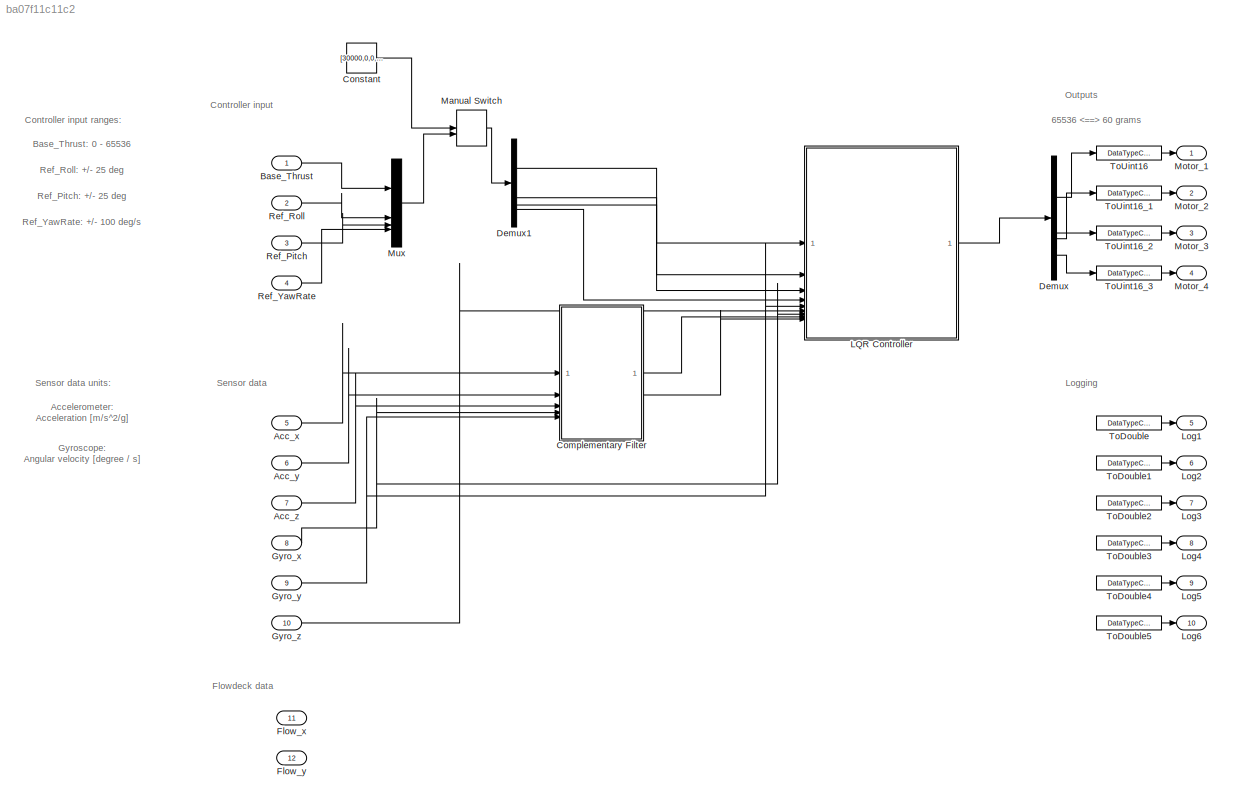
MODEL slx_ba07f11c11c2
KIND model
CONFIG AbsTol = auto
CONFIG EnableMultiTasking = off
CONFIG FixedStep = 0.01
CONFIG MaxStep = auto
CONFIG MinStep = auto
CONFIG RelTol = 1e-3
CONFIG SampleTimeConstraint = Unconstrained
CONFIG SolverName = FixedStepDiscrete
CONFIG StartTime = 0.0
CONFIG StopTime = 25
BLOCK [Inport] Acc_x
  OutDataTypeStr = double
  Port = 5
  PortDimensions = 1
  SignalType = real
  VarSizeSig = No
BLOCK [Inport] Acc_y
  OutDataTypeStr = double
  Port = 6
  PortDimensions = 1
  SignalType = real
  VarSizeSig = No
BLOCK [Inport] Acc_z
  OutDataTypeStr = double
  Port = 7
  PortDimensions = 1
  SignalType = real
  VarSizeSig = No
BLOCK [Inport] Base_Thrust
  OutDataTypeStr = double
  SignalType = real
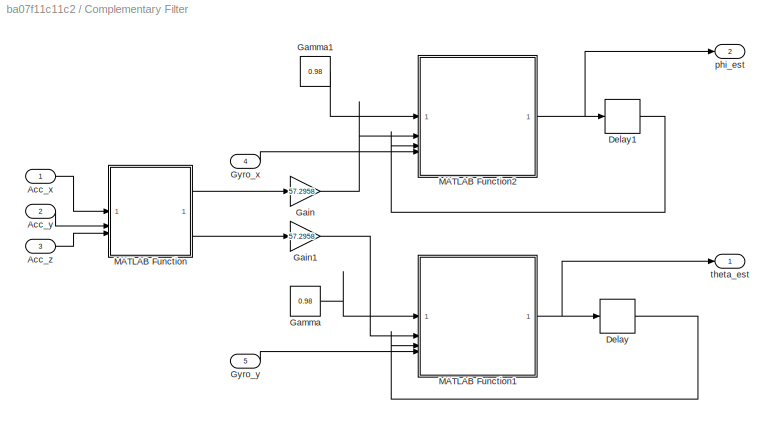
BLOCK [SubSystem] Complementary Filter
BLOCK [Inport] Complementary Filter/Acc_x
BLOCK [Inport] Complementary Filter/Acc_y
  Port = 2
BLOCK [Inport] Complementary Filter/Acc_z
  Port = 3
BLOCK [Delay] Complementary Filter/Delay
  DelayLength = 1
  InputPortMap = u0
BLOCK [Delay] Complementary Filter/Delay1
  DelayLength = 1
  InputPortMap = u0
BLOCK [Gain] Complementary Filter/Gain
  Gain = 57.2958
  Multiplication = Matrix(K*u)
BLOCK [Gain] Complementary Filter/Gain1
  Gain = 57.2958
  Multiplication = Matrix(K*u)
BLOCK [Constant] Complementary Filter/Gamma
  Value = 0.98
BLOCK [Constant] Complementary Filter/Gamma1
  Value = 0.98
BLOCK [Inport] Complementary Filter/Gyro_x
  Port = 4
BLOCK [Inport] Complementary Filter/Gyro_y
  Port = 5
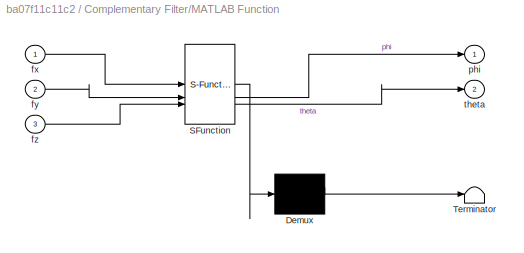
BLOCK [SubSystem] Complementary Filter/MATLAB Function
  ErrorFcn = Stateflow.Translate.translate
  PermitHierarchicalResolution = ExplicitOnly
  SFBlockType = MATLAB Function
  TreatAsAtomicUnit = on
BLOCK [Demux] Complementary Filter/MATLAB Function/ Demux 
  Outputs = 1
BLOCK [S-Function] Complementary Filter/MATLAB Function/ SFunction 
  EnableBusSupport = on
  FunctionName = sf_sfun
  PortCounts = [3 3]
  SFcnIsStateOwnerBlock = off
  SFunctionDeploymentMode = off
  Tag = Stateflow S-Function 2
BLOCK [Terminator] Complementary Filter/MATLAB Function/ Terminator 
BLOCK [Inport] Complementary Filter/MATLAB Function/fx
BLOCK [Inport] Complementary Filter/MATLAB Function/fy
  Port = 2
BLOCK [Inport] Complementary Filter/MATLAB Function/fz
  Port = 3
BLOCK [Outport] Complementary Filter/MATLAB Function/phi
BLOCK [Outport] Complementary Filter/MATLAB Function/theta
  Port = 2
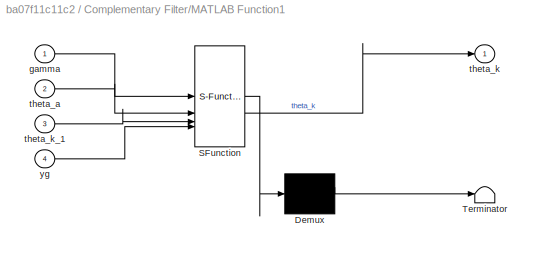
BLOCK [SubSystem] Complementary Filter/MATLAB Function1
  ErrorFcn = Stateflow.Translate.translate
  PermitHierarchicalResolution = ExplicitOnly
  SFBlockType = MATLAB Function
  TreatAsAtomicUnit = on
BLOCK [Demux] Complementary Filter/MATLAB Function1/ Demux 
  Outputs = 1
BLOCK [S-Function] Complementary Filter/MATLAB Function1/ SFunction 
  EnableBusSupport = on
  FunctionName = sf_sfun
  PortCounts = [4 2]
  SFcnIsStateOwnerBlock = off
  SFunctionDeploymentMode = off
  Tag = Stateflow S-Function 1
BLOCK [Terminator] Complementary Filter/MATLAB Function1/ Terminator 
BLOCK [Inport] Complementary Filter/MATLAB Function1/gamma
BLOCK [Inport] Complementary Filter/MATLAB Function1/theta_a
  Port = 2
BLOCK [Outport] Complementary Filter/MATLAB Function1/theta_k
BLOCK [Inport] Complementary Filter/MATLAB Function1/theta_k_1
  Port = 3
BLOCK [Inport] Complementary Filter/MATLAB Function1/yg
  Port = 4
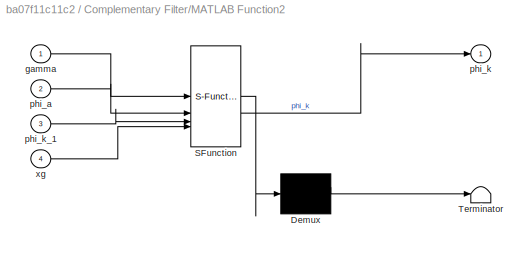
BLOCK [SubSystem] Complementary Filter/MATLAB Function2
  ErrorFcn = Stateflow.Translate.translate
  PermitHierarchicalResolution = ExplicitOnly
  SFBlockType = MATLAB Function
  TreatAsAtomicUnit = on
BLOCK [Demux] Complementary Filter/MATLAB Function2/ Demux 
  Outputs = 1
BLOCK [S-Function] Complementary Filter/MATLAB Function2/ SFunction 
  EnableBusSupport = on
  FunctionName = sf_sfun
  PortCounts = [4 2]
  SFcnIsStateOwnerBlock = off
  SFunctionDeploymentMode = off
  Tag = Stateflow S-Function 3
BLOCK [Terminator] Complementary Filter/MATLAB Function2/ Terminator 
BLOCK [Inport] Complementary Filter/MATLAB Function2/gamma
BLOCK [Inport] Complementary Filter/MATLAB Function2/phi_a
  Port = 2
BLOCK [Outport] Complementary Filter/MATLAB Function2/phi_k
BLOCK [Inport] Complementary Filter/MATLAB Function2/phi_k_1
  Port = 3
BLOCK [Inport] Complementary Filter/MATLAB Function2/xg
  Port = 4
BLOCK [Outport] Complementary Filter/phi_est
  Port = 2
BLOCK [Outport] Complementary Filter/theta_est
BLOCK [Constant] Constant
  Value = [30000,0,0,0]
BLOCK [Demux] Demux
BLOCK [Demux] Demux1
BLOCK [Inport] Flow_x
  OutDataTypeStr = int16
  Port = 11
  PortDimensions = 1
  SignalType = real
  VarSizeSig = No
BLOCK [Inport] Flow_y
  OutDataTypeStr = int16
  Port = 12
  PortDimensions = 1
  SignalType = real
  VarSizeSig = No
BLOCK [Inport] Gyro_x
  OutDataTypeStr = double
  Port = 8
  PortDimensions = 1
  SignalType = real
  VarSizeSig = No
BLOCK [Inport] Gyro_y
  OutDataTypeStr = double
  Port = 9
  PortDimensions = 1
  SignalType = real
  VarSizeSig = No
BLOCK [Inport] Gyro_z
  OutDataTypeStr = double
  Port = 10
  PortDimensions = 1
  SignalType = real
  VarSizeSig = No
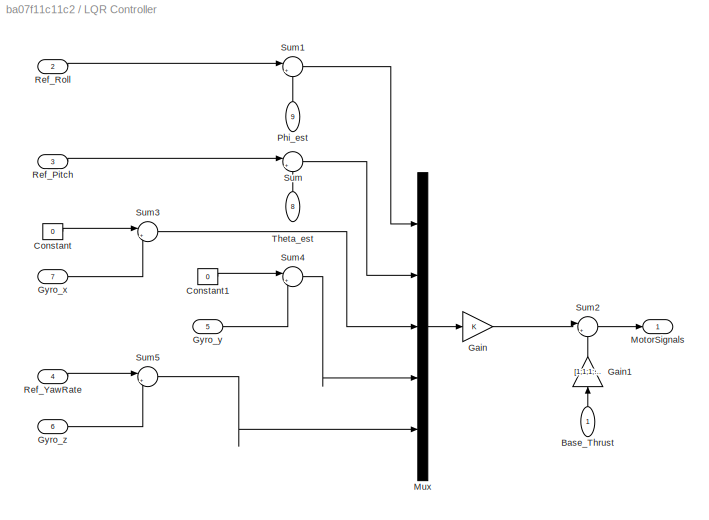
BLOCK [SubSystem] LQR Controller
BLOCK [Inport] LQR Controller/Base_Thrust
  NameLocation = right
BLOCK [Constant] LQR Controller/Constant
  Value = 0
BLOCK [Constant] LQR Controller/Constant1
  Value = 0
BLOCK [Gain] LQR Controller/Gain
  Gain = K
  Multiplication = Matrix(K*u)
BLOCK [Gain] LQR Controller/Gain1
  Gain = [1;1;1;1]
  NameLocation = right
BLOCK [Inport] LQR Controller/Gyro_x
  Port = 7
BLOCK [Inport] LQR Controller/Gyro_y
  Port = 5
BLOCK [Inport] LQR Controller/Gyro_z
  Port = 6
BLOCK [Outport] LQR Controller/MotorSignals
BLOCK [Mux] LQR Controller/Mux
  DisplayOption = bar
  Inputs = 5
BLOCK [Inport] LQR Controller/Phi_est
  NameLocation = right
  Port = 9
BLOCK [Inport] LQR Controller/Ref_Pitch
  Port = 3
BLOCK [Inport] LQR Controller/Ref_Roll
  Port = 2
BLOCK [Inport] LQR Controller/Ref_YawRate
  Port = 4
BLOCK [Sum] LQR Controller/Sum
  Inputs = |+-
BLOCK [Sum] LQR Controller/Sum1
  Inputs = |+-
BLOCK [Sum] LQR Controller/Sum2
  Inputs = |++
BLOCK [Sum] LQR Controller/Sum3
  Inputs = |+-
BLOCK [Sum] LQR Controller/Sum4
  Inputs = |+-
BLOCK [Sum] LQR Controller/Sum5
  Inputs = |+-
BLOCK [Inport] LQR Controller/Theta_est
  NameLocation = right
  Port = 8
BLOCK [Outport] Log1
  OutDataTypeStr = double
  Port = 5
  VectorParamsAs1DForOutWhenUnconnected = off
BLOCK [Outport] Log2
  OutDataTypeStr = double
  Port = 6
  VectorParamsAs1DForOutWhenUnconnected = off
BLOCK [Outport] Log3
  OutDataTypeStr = double
  Port = 7
  VectorParamsAs1DForOutWhenUnconnected = off
BLOCK [Outport] Log4
  OutDataTypeStr = double
  Port = 8
  VectorParamsAs1DForOutWhenUnconnected = off
BLOCK [Outport] Log5
  OutDataTypeStr = double
  Port = 9
  VectorParamsAs1DForOutWhenUnconnected = off
BLOCK [Outport] Log6
  OutDataTypeStr = double
  Port = 10
  VectorParamsAs1DForOutWhenUnconnected = off
BLOCK [ManualSwitch] Manual Switch
  CurrentSetting = 0
BLOCK [Outport] Motor_1
  LockScale = on
  OutDataTypeStr = uint16
  VectorParamsAs1DForOutWhenUnconnected = off
BLOCK [Outport] Motor_2
  LockScale = on
  OutDataTypeStr = uint16
  Port = 2
  VectorParamsAs1DForOutWhenUnconnected = off
BLOCK [Outport] Motor_3
  LockScale = on
  OutDataTypeStr = uint16
  Port = 3
  VectorParamsAs1DForOutWhenUnconnected = off
BLOCK [Outport] Motor_4
  LockScale = on
  OutDataTypeStr = uint16
  Port = 4
  VectorParamsAs1DForOutWhenUnconnected = off
BLOCK [Mux] Mux
  DisplayOption = bar
BLOCK [Inport] Ref_Pitch
  OutDataTypeStr = double
  Port = 3
BLOCK [Inport] Ref_Roll
  OutDataTypeStr = double
  Port = 2
BLOCK [Inport] Ref_YawRate
  OutDataTypeStr = double
  Port = 4
BLOCK [DataTypeConversion] ToDouble
  OutDataTypeStr = double
  RndMeth = Floor
BLOCK [DataTypeConversion] ToDouble1
  OutDataTypeStr = double
  RndMeth = Floor
BLOCK [DataTypeConversion] ToDouble2
  OutDataTypeStr = double
  RndMeth = Floor
BLOCK [DataTypeConversion] ToDouble3
  OutDataTypeStr = double
  RndMeth = Floor
BLOCK [DataTypeConversion] ToDouble4
  OutDataTypeStr = double
  RndMeth = Floor
BLOCK [DataTypeConversion] ToDouble5
  OutDataTypeStr = double
  RndMeth = Floor
BLOCK [DataTypeConversion] ToUint16
  OutDataTypeStr = uint16
  RndMeth = Floor
BLOCK [DataTypeConversion] ToUint16_1
  OutDataTypeStr = uint16
  RndMeth = Floor
BLOCK [DataTypeConversion] ToUint16_2
  OutDataTypeStr = uint16
  RndMeth = Floor
BLOCK [DataTypeConversion] ToUint16_3
  OutDataTypeStr = uint16
  RndMeth = Floor
ANNOTATION (root): 65536 60 grams
ANNOTATION (root): Accelerometer: Acceleration [m/s^2/g]
ANNOTATION (root): Base_Thrust: 0 - 65536
ANNOTATION (root): Controller input
ANNOTATION (root): Controller input ranges:
ANNOTATION (root): Flowdeck data
ANNOTATION (root): Gyroscope: Angular velocity [degree / s]
ANNOTATION (root): Logging
ANNOTATION (root): Outputs
ANNOTATION (root): Ref_Pitch: +/- 25 deg
ANNOTATION (root): Ref_Roll: +/- 25 deg
ANNOTATION (root): Ref_YawRate: +/- 100 deg/s
ANNOTATION (root): Sensor data
ANNOTATION (root): Sensor data units:
LINE Acc_x:1 -> Complementary Filter:1
LINE Acc_y:1 -> Complementary Filter:2
LINE Acc_z:1 -> Complementary Filter:3
LINE Base_Thrust:1 -> Mux:1
LINE Complementary Filter/Acc_x:1 -> Complementary Filter/MATLAB Function:1
LINE Complementary Filter/Acc_y:1 -> Complementary Filter/MATLAB Function:2
LINE Complementary Filter/Acc_z:1 -> Complementary Filter/MATLAB Function:3
LINE Complementary Filter/Delay1:1 -> Complementary Filter/MATLAB Function2:3
LINE Complementary Filter/Delay:1 -> Complementary Filter/MATLAB Function1:3
LINE Complementary Filter/Gain1:1 -> Complementary Filter/MATLAB Function1:2
LINE Complementary Filter/Gain:1 -> Complementary Filter/MATLAB Function2:2
LINE Complementary Filter/Gamma1:1 -> Complementary Filter/MATLAB Function2:1
LINE Complementary Filter/Gamma:1 -> Complementary Filter/MATLAB Function1:1
LINE Complementary Filter/Gyro_x:1 -> Complementary Filter/MATLAB Function2:4
LINE Complementary Filter/Gyro_y:1 -> Complementary Filter/MATLAB Function1:4
NET Complementary Filter/MATLAB Function1:1 -> Complementary Filter/Delay:1, Complementary Filter/theta_est:1
NET Complementary Filter/MATLAB Function2:1 -> Complementary Filter/Delay1:1, Complementary Filter/phi_est:1
LINE Complementary Filter/MATLAB Function:1 -> Complementary Filter/Gain:1
LINE Complementary Filter/MATLAB Function:2 -> Complementary Filter/Gain1:1
LINE Complementary Filter:1 -> LQR Controller:8
LINE Complementary Filter:2 -> LQR Controller:9
LINE Constant:1 -> Manual Switch:1
LINE Demux1:1 -> LQR Controller:1
LINE Demux1:2 -> LQR Controller:2
LINE Demux1:3 -> LQR Controller:3
LINE Demux1:4 -> LQR Controller:4
LINE Demux:1 -> ToUint16:1
LINE Demux:2 -> ToUint16_1:1
LINE Demux:3 -> ToUint16_2:1
LINE Demux:4 -> ToUint16_3:1
NET Gyro_x:1 -> Complementary Filter:4, LQR Controller:7
NET Gyro_y:1 -> Complementary Filter:5, LQR Controller:5
LINE Gyro_z:1 -> LQR Controller:6
LINE LQR Controller/Base_Thrust:1 -> LQR Controller/Gain1:1
LINE LQR Controller/Constant1:1 -> LQR Controller/Sum4:1
LINE LQR Controller/Constant:1 -> LQR Controller/Sum3:1
LINE LQR Controller/Gain1:1 -> LQR Controller/Sum2:2
LINE LQR Controller/Gain:1 -> LQR Controller/Sum2:1
LINE LQR Controller/Gyro_x:1 -> LQR Controller/Sum3:2
LINE LQR Controller/Gyro_y:1 -> LQR Controller/Sum4:2
LINE LQR Controller/Gyro_z:1 -> LQR Controller/Sum5:2
LINE LQR Controller/Mux:1 -> LQR Controller/Gain:1
LINE LQR Controller/Phi_est:1 -> LQR Controller/Sum1:2
LINE LQR Controller/Ref_Pitch:1 -> LQR Controller/Sum:1
LINE LQR Controller/Ref_Roll:1 -> LQR Controller/Sum1:1
LINE LQR Controller/Ref_YawRate:1 -> LQR Controller/Sum5:1
LINE LQR Controller/Sum1:1 -> LQR Controller/Mux:1
LINE LQR Controller/Sum2:1 -> LQR Controller/MotorSignals:1
LINE LQR Controller/Sum3:1 -> LQR Controller/Mux:3
LINE LQR Controller/Sum4:1 -> LQR Controller/Mux:4
LINE LQR Controller/Sum5:1 -> LQR Controller/Mux:5
LINE LQR Controller/Sum:1 -> LQR Controller/Mux:2
LINE LQR Controller/Theta_est:1 -> LQR Controller/Sum:2
LINE LQR Controller:1 -> Demux:1
LINE Manual Switch:1 -> Demux1:1
LINE Mux:1 -> Manual Switch:2
LINE Ref_Pitch:1 -> Mux:3
LINE Ref_Roll:1 -> Mux:2
LINE Ref_YawRate:1 -> Mux:4
LINE ToDouble1:1 -> Log2:1
LINE ToDouble2:1 -> Log3:1
LINE ToDouble3:1 -> Log4:1
LINE ToDouble4:1 -> Log5:1
LINE ToDouble5:1 -> Log6:1
LINE ToDouble:1 -> Log1:1
LINE ToUint16:1 -> Motor_1:1
LINE ToUint16_1:1 -> Motor_2:1
LINE ToUint16_2:1 -> Motor_3:1
LINE ToUint16_3:1 -> Motor_4:1
note: NET lines group one-source signal fan-out (src -> all destinations, sorted); 1:1 wires keep LINE
CHART Complementary Filter/MATLAB Function1 states=1 transitions=1
  STATE_LABEL 'eML_blk_kernel()'
  STATE_LABEL 'SCRIPT:\nfunction theta_k = fcn(gamma, theta_a,theta_k_1,yg)\n\ntheta_k = (1-gamma)*theta_a+gamma*(theta_k_1+0.001*yg);\nend\n'
CHART Complementary Filter/MATLAB Function states=1 transitions=1
  STATE_LABEL 'eML_blk_kernel()'
  STATE_LABEL 'SCRIPT:\nfunction [phi,theta] = fcn(fx,fy,fz)\n\nphi = atan2(fy,fz);\ntheta=atan2(-fx,sqrt(fy^2+fz^2));\nend\n'
CHART Complementary Filter/MATLAB Function2 states=1 transitions=1
  STATE_LABEL 'eML_blk_kernel()'
  STATE_LABEL 'SCRIPT:\nfunction phi_k = fcn(gamma, phi_a,phi_k_1,xg)\n\nphi_k = (1-gamma)*phi_a+gamma*(phi_k_1+0.001*xg);\nend\n'
CHART  states=0 transitions=0
CHART  states=0 transitions=0
CHART  states=0 transitions=0
